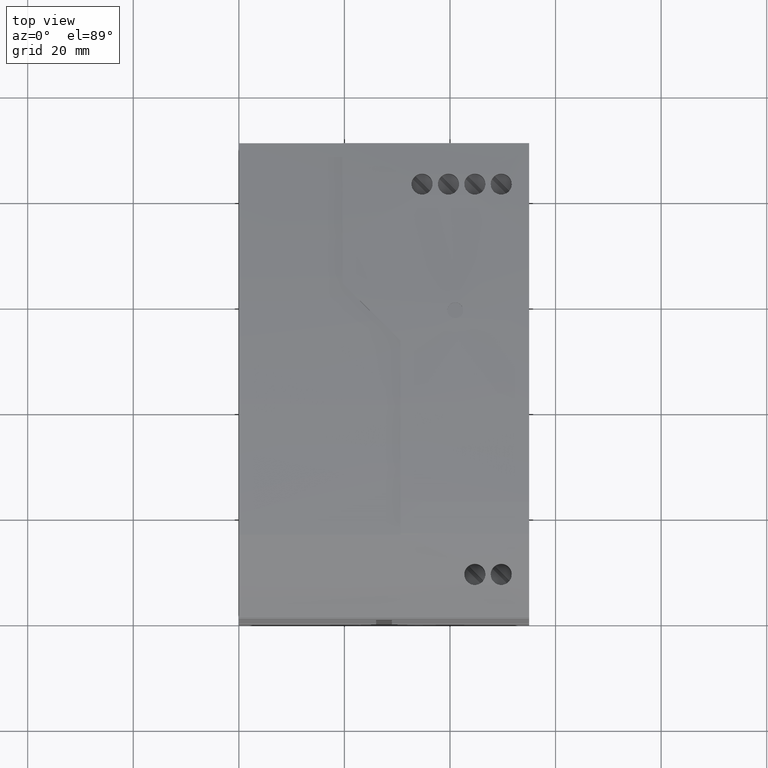
[diagram: clean part render]
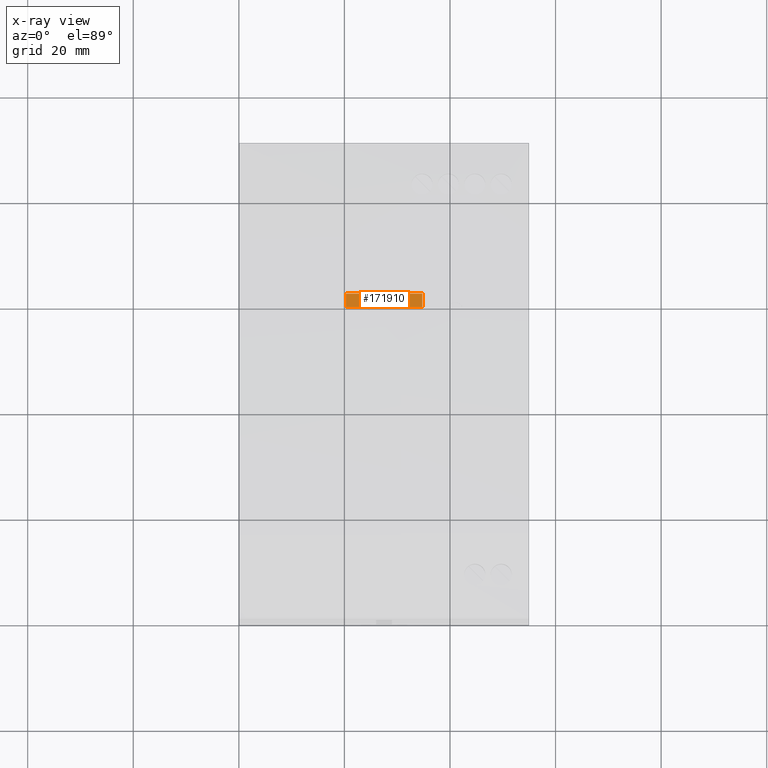
[diagram: x-ray — body ghosted, one internal face saturated and labeled with its STEP entity id]
A machine part, top view, then the same camera in x-ray: the body is ghosted and one INTERNAL B-rep face — a face not visible from any outside direction — is saturated and labeled: STEP entity #171910.
In plain terms, the highlighted planar face has unit normal (0, 0.2696, -0.963).
Its self-contained STEP definition (entity closure, byte-faithful):
#56800=CARTESIAN_POINT('',(17.7984763926468,5.22907227621138,-19.25));
#56810=VERTEX_POINT('',#56800);
#56860=CARTESIAN_POINT('',(17.7984763926468,5.22907227621138,0.));
#56870=DIRECTION('',(0.,0.,-1.));
#56880=VECTOR('',#56870,1.);
#56890=LINE('',#56860,#56880);
#56900=CARTESIAN_POINT('',(17.7984763926468,5.22907227621138,-33.75));
#56910=VERTEX_POINT('',#56900);
#56920=EDGE_CURVE('',#56810,#56910,#56890,.T.);
#171220=CARTESIAN_POINT('',(15.2984763926468,4.52907227621132,-33.75));
#171230=VERTEX_POINT('',#171220);
#171260=CARTESIAN_POINT('',(15.2984763926468,4.52907227621132,0.));
#171270=DIRECTION('',(0.,0.,1.));
#171280=VECTOR('',#171270,1.);
#171290=LINE('',#171260,#171280);
#171300=CARTESIAN_POINT('',(15.2984763926468,4.52907227621132,-19.25));
#171310=VERTEX_POINT('',#171300);
#171320=EDGE_CURVE('',#171230,#171310,#171290,.T.);
#171580=CARTESIAN_POINT('',(0.,0.245498886269802,-19.25));
#171590=DIRECTION('',(-0.962964019714175,-0.269629925519994,0.));
#171600=VECTOR('',#171590,1.);
#171610=LINE('',#171580,#171600);
#171620=EDGE_CURVE('',#56810,#171310,#171610,.T.);
#171750=CARTESIAN_POINT('',(17.7984763926468,5.22907227621138,-33.75));
#171760=DIRECTION('',(0.269629925519994,-0.962964019714175,0.));
#171770=DIRECTION('',(0.962964019714175,0.269629925519994,0.));
#171780=AXIS2_PLACEMENT_3D('',#171750,#171760,#171770);
#171790=PLANE('',#171780);
#171800=CARTESIAN_POINT('',(17.7984763926468,5.22907227621138,-33.75));
#171810=DIRECTION('',(-0.962964019714175,-0.269629925519994,0.));
#171820=VECTOR('',#171810,1.);
#171830=LINE('',#171800,#171820);
#171840=EDGE_CURVE('',#56910,#171230,#171830,.T.);
#171850=ORIENTED_EDGE('',*,*,#171840,.T.);
#171860=ORIENTED_EDGE('',*,*,#56920,.T.);
#171870=ORIENTED_EDGE('',*,*,#171620,.F.);
#171880=ORIENTED_EDGE('',*,*,#171320,.T.);
#171890=EDGE_LOOP('',(#171880,#171870,#171860,#171850));
#171900=FACE_OUTER_BOUND('',#171890,.T.);
#171910=ADVANCED_FACE('',(#171900),#171790,.F.);